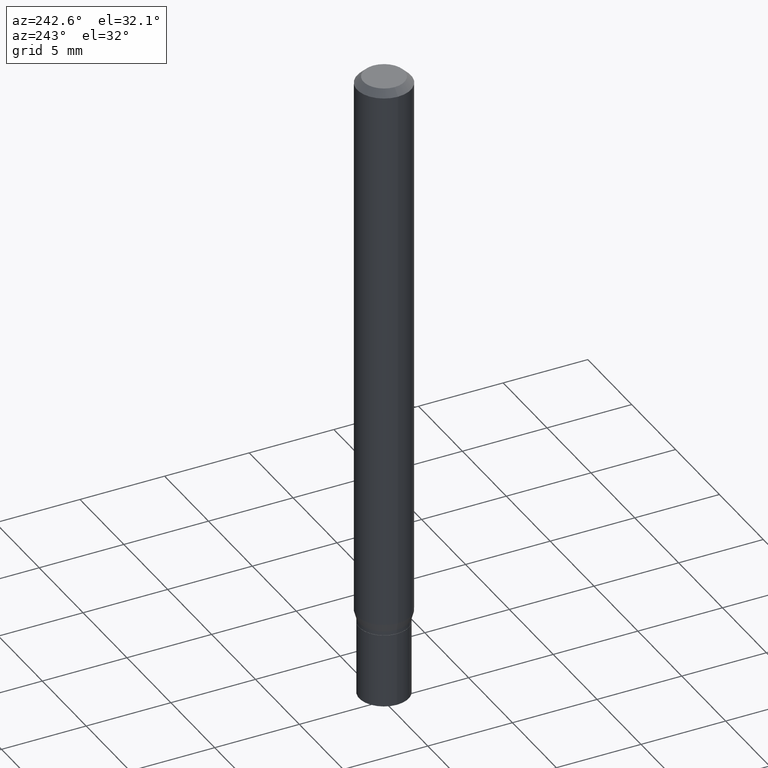
[diagram: clean part render]
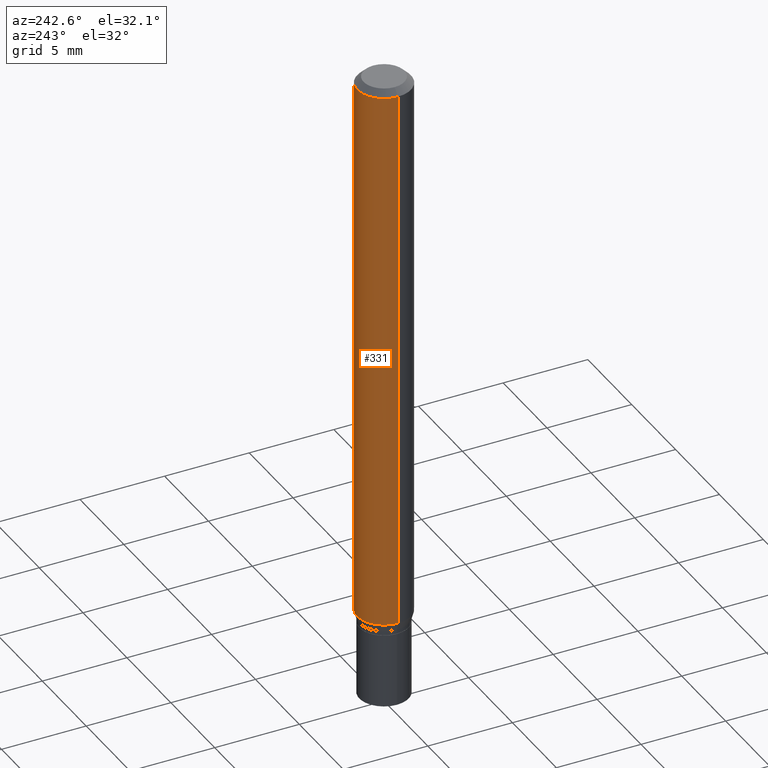
[diagram: same view with one face highlighted and labeled with its STEP entity id]
A machine part, auxiliary view. The second image highlights one B-rep face of the part: STEP entity #331.
In plain terms, the highlighted cylindrical surface (edge-blend (fillet) strip) has radius 1.5875 mm, axis along (-0, 0, 1).
Its self-contained STEP definition (entity closure, byte-faithful):
#1 = CARTESIAN_POINT ( 'NONE',  ( 0.06250000000000000000, -4.969564161860607604E-15, -1.298339745962155511 ) ) ;
#18 = DIRECTION ( 'NONE',  ( -2.445468806185136877E-29, 3.491481338843145188E-15, 1.000000000000000000 ) ) ;
#25 = AXIS2_PLACEMENT_3D ( 'NONE', #375, #85, #225 ) ;
#35 = VERTEX_POINT ( 'NONE', #307 ) ;
#57 = EDGE_CURVE ( 'NONE', #101, #35, #281, .T. ) ;
#70 = VERTEX_POINT ( 'NONE', #273 ) ;
#71 = FACE_OUTER_BOUND ( 'NONE', #117, .T. ) ;
#75 = CARTESIAN_POINT ( 'NONE',  ( -0.06250000000000000000, -1.848661397443869088E-15, -0.01499999999999999944 ) ) ;
#79 = DIRECTION ( 'NONE',  ( -2.445468806185136877E-29, 3.491481338843145188E-15, 1.000000000000000000 ) ) ;
#85 = DIRECTION ( 'NONE',  ( -2.445468806185136597E-29, 3.491481338843145583E-15, 1.000000000000000000 ) ) ;
#100 = CARTESIAN_POINT ( 'NONE',  ( 0.06250000000000000000, -4.364351673553916694E-16, 3.047610484872459871E-30 ) ) ;
#101 = VERTEX_POINT ( 'NONE', #1 ) ;
#103 = DIRECTION ( 'NONE',  ( 1.000000000000000000, -6.982962677686266711E-15, 4.876176775795935793E-29 ) ) ;
#117 = EDGE_LOOP ( 'NONE', ( #206, #269, #336, #431 ) ) ;
#119 = CIRCLE ( 'NONE', #25, 0.06250000000000000000 ) ;
#142 = EDGE_CURVE ( 'NONE', #70, #451, #260, .T. ) ;
#145 = DIRECTION ( 'NONE',  ( 1.000000000000000000, -6.982962677686262766E-15, 0.000000000000000000 ) ) ;
#181 = DIRECTION ( 'NONE',  ( -2.445468806185136597E-29, 3.491481338843145583E-15, 1.000000000000000000 ) ) ;
#206 = ORIENTED_EDGE ( 'NONE', *, *, #345, .T. ) ;
#212 = VECTOR ( 'NONE', #79, 39.37007874015748143 ) ;
#223 = CARTESIAN_POINT ( 'NONE',  ( 3.175049348580785611E-29, -4.533128994505215935E-15, -1.298339745962155511 ) ) ;
#225 = DIRECTION ( 'NONE',  ( 1.000000000000000000, -6.982962677686266711E-15, 0.000000000000000000 ) ) ;
#260 = LINE ( 'NONE', #296, #212 ) ;
#269 = ORIENTED_EDGE ( 'NONE', *, *, #142, .T. ) ;
#273 = CARTESIAN_POINT ( 'NONE',  ( -0.06250000000000000000, -4.089039784655153318E-15, -1.298339745962155511 ) ) ;
#278 = CYLINDRICAL_SURFACE ( 'NONE', #460, 0.06250000000000000000 ) ;
#281 = LINE ( 'NONE', #100, #380 ) ;
#296 = CARTESIAN_POINT ( 'NONE',  ( -0.06250000000000000000, 4.440892098500626162E-16, -3.074334431409316114E-30 ) ) ;
#307 = CARTESIAN_POINT ( 'NONE',  ( 0.06250000000000000000, -4.888073874380388472E-16, -0.01499999999999999944 ) ) ;
#331 = ADVANCED_FACE ( 'NONE', ( #71 ), #278, .T. ) ;
#336 = ORIENTED_EDGE ( 'NONE', *, *, #458, .F. ) ;
#345 = EDGE_CURVE ( 'NONE', #101, #70, #376, .T. ) ;
#356 = CARTESIAN_POINT ( 'NONE',  ( 0.000000000000000000, 0.000000000000000000, 0.000000000000000000 ) ) ;
#375 = CARTESIAN_POINT ( 'NONE',  ( 3.668203209277705088E-31, -5.237222008264718399E-17, -0.01499999999999999944 ) ) ;
#376 = CIRCLE ( 'NONE', #385, 0.06250000000000000000 ) ;
#380 = VECTOR ( 'NONE', #18, 39.37007874015748143 ) ;
#385 = AXIS2_PLACEMENT_3D ( 'NONE', #223, #181, #145 ) ;
#431 = ORIENTED_EDGE ( 'NONE', *, *, #57, .F. ) ;
#432 = DIRECTION ( 'NONE',  ( -2.445468806185136597E-29, 3.491481338843145583E-15, 1.000000000000000000 ) ) ;
#451 = VERTEX_POINT ( 'NONE', #75 ) ;
#458 = EDGE_CURVE ( 'NONE', #35, #451, #119, .T. ) ;
#460 = AXIS2_PLACEMENT_3D ( 'NONE', #356, #432, #103 ) ;